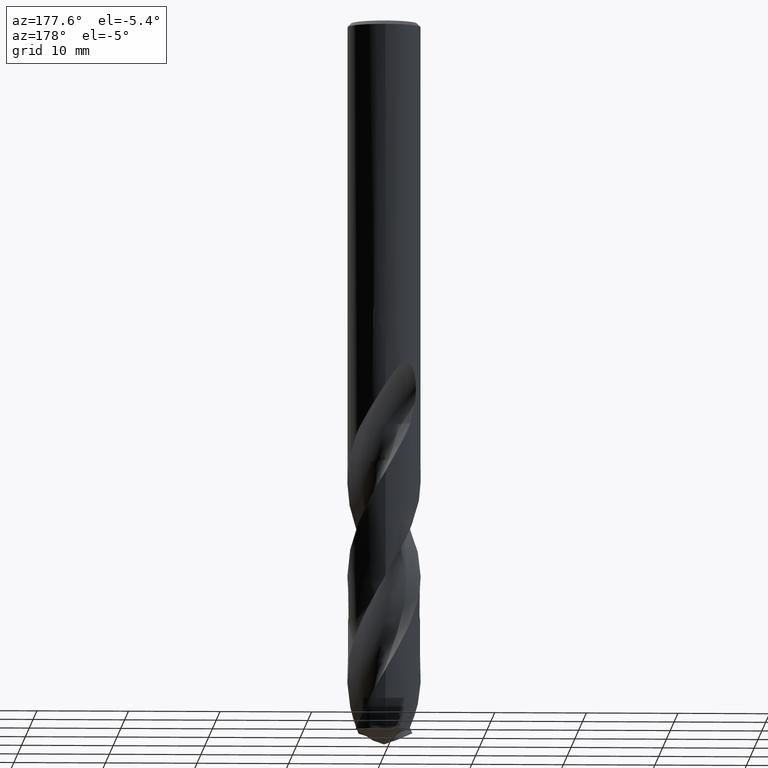
[diagram: clean part render]
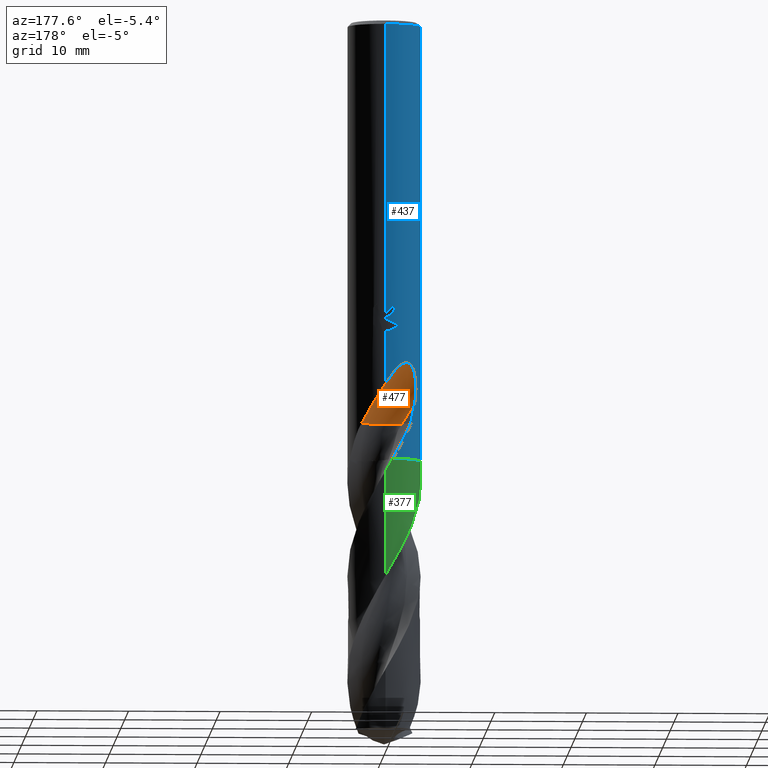
[diagram: same view with three faces highlighted in distinct colors, each labeled with its STEP entity id]
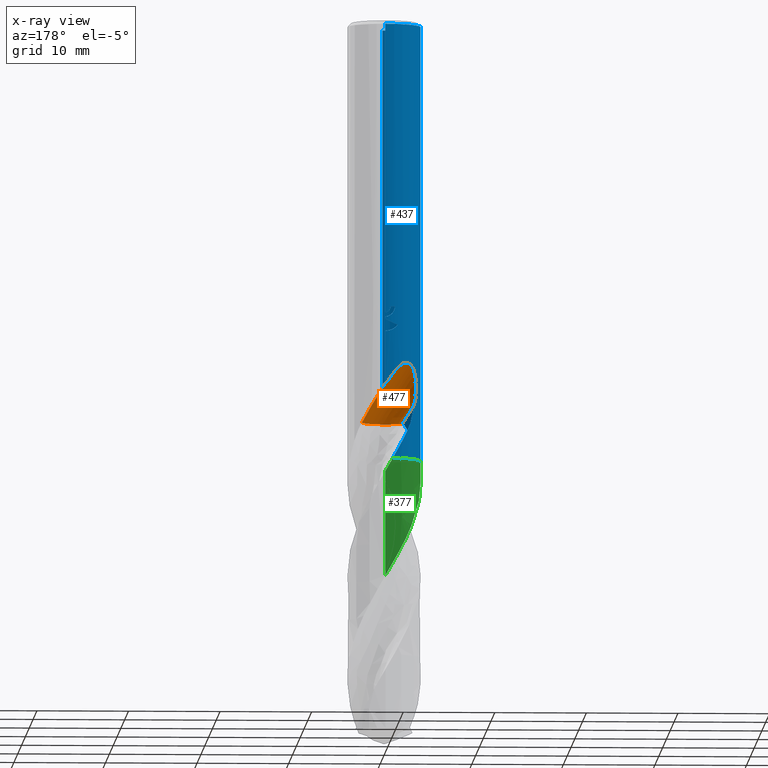
[diagram: x-ray of the same camera — body ghosted, the three highlighted faces saturated]
A machine part, auxiliary view with three faces highlighted in distinct colors.
The next image is the same camera in x-ray (body ghosted, the three faces saturated) — at least one of them is partly hidden behind the body in this view.
Their STEP definitions:

[orange] entity #477 — the highlighted face is a SurfaceOfRevolution surface.
#353=VERTEX_POINT('',#850);
#415=EDGE_CURVE('',#491,#523,#917,.T.);
#443=EDGE_CURVE('',#541,#461,#948,.T.);
#461=VERTEX_POINT('',#971);
#475=EDGE_CURVE('',#353,#523,#988,.T.);
#477=ADVANCED_FACE('',(#990),#991,.F.);
#491=VERTEX_POINT('',#1007);
#501=EDGE_CURVE('',#461,#353,#1017,.T.);
#523=VERTEX_POINT('',#1039);
#541=VERTEX_POINT('',#1058);
#641=EDGE_CURVE('',#541,#491,#1162,.T.);
#850=CARTESIAN_POINT('',(-1.88561808545044,1.98104858454956,-44.053));
#917=B_SPLINE_CURVE_WITH_KNOTS('',3,(#2986,#2987,#2988,#2989,#2990,#2991,#2992,#2993,#2994,#2995,#2996,#2997,#2998,#2999,#3000,#3001,#3002,#3003,#3004,#3005,#3006,#3007,#3008,#3009,#3010,#3011,#3012,#3013,#3014,#3015),.UNSPECIFIED.,.F.,.F.,(4,2,2,2,2,2,2,2,2,2,2,2,2,2,4),(0.0,1.95977624076947,3.02985967370601,3.99908599318628,5.12509377225497,6.47768674139893,7.65000215056745,8.18125540149243,8.56953673186918,8.93696441781958,9.40306833899562,10.0849972789289,11.0544394482072,11.6888355435218,12.3555427460094),.UNSPECIFIED.);
#948=CIRCLE('',#3332,2.66666667);
#971=CARTESIAN_POINT('',(-0.432589242824663,1.23530780301395,-44.053));
#988=CIRCLE('',#3715,17.3810396163249);
#990=FACE_OUTER_BOUND('',#3717,.T.);
#991=SURFACE_OF_REVOLUTION('',#3718,#3719);
#1007=CARTESIAN_POINT('',(-1.18618515617536E-012,4.0,-39.8010886237942));
#1017=CIRCLE('',#3901,2.66666667);
#1039=CARTESIAN_POINT('',(-3.25456865325919,2.32546401417495,-41.862679091506));
#1058=CARTESIAN_POINT('',(2.54885976013372,3.08274454393663,-44.053));
#1162=B_SPLINE_CURVE_WITH_KNOTS('',3,(#5756,#5757,#5758,#5759,#5760,#5761,#5762,#5763,#5764,#5765,#5766,#5767,#5768,#5769,#5770,#5771,#5772,#5773,#5774,#5775,#5776,#5777,#5778,#5779,#5780,#5781,#5782,#5783,#5784,#5785),.UNSPECIFIED.,.F.,.F.,(4,2,2,2,2,2,2,2,2,2,2,2,2,2,4),(0.0,1.95977624076947,3.02985967370601,3.99908599318628,5.12509377225497,6.47768674139893,7.65000215056745,8.18125540149243,8.56953673186918,8.93696441781958,9.40306833899562,10.0849972789289,11.0544394482072,11.6888355435218,12.3555427460094),.UNSPECIFIED.);
#2986=CARTESIAN_POINT('',(2.54885976013372,3.08274454393663,-44.053));
#2987=CARTESIAN_POINT('',(2.28500523660261,3.30090345005828,-43.4966417767988));
#2988=CARTESIAN_POINT('',(1.98163231588755,3.49483155995579,-42.977936421169));
#2989=CARTESIAN_POINT('',(1.45264038690851,3.73253113273964,-42.1114036522164));
#2990=CARTESIAN_POINT('',(1.26228426683794,3.80090830680974,-41.8065283302372));
#2991=CARTESIAN_POINT('',(0.893778878987872,3.90310035133813,-41.2163687713547));
#2992=CARTESIAN_POINT('',(0.717274980064568,3.93920455800775,-40.9338353559214));
#2993=CARTESIAN_POINT('',(0.33521839832061,3.99131183045806,-40.3249008687614));
#2994=CARTESIAN_POINT('',(0.126474396085212,4.00354517408276,-39.9937333591078));
#2995=CARTESIAN_POINT('',(-0.337092631504132,3.99379417253619,-39.2852567198373));
#2996=CARTESIAN_POINT('',(-0.611941054861174,3.96363461880695,-38.8821257542007));
#2997=CARTESIAN_POINT('',(-1.14195068256935,3.84183599193105,-38.2173906398542));
#2998=CARTESIAN_POINT('',(-1.43518376737336,3.74904084478621,-37.8930259656217));
#2999=CARTESIAN_POINT('',(-1.87898919238026,3.53454780533531,-37.5892910671245));
#3000=CARTESIAN_POINT('',(-2.02589175203402,3.45357173492742,-37.5142260075858));
#3001=CARTESIAN_POINT('',(-2.28329880223286,3.28684001880265,-37.4565626198684));
#3002=CARTESIAN_POINT('',(-2.38887588461981,3.21090914700583,-37.4554859280565));
#3003=CARTESIAN_POINT('',(-2.58551889986573,3.05450740730473,-37.5059535003711));
#3004=CARTESIAN_POINT('',(-2.67152074136922,2.97896849222708,-37.5532713078944));
#3005=CARTESIAN_POINT('',(-2.8465335331701,2.81343086569157,-37.7013232644774));
#3006=CARTESIAN_POINT('',(-2.92750237022738,2.72764511666503,-37.8106329899809));
#3007=CARTESIAN_POINT('',(-3.09335272716449,2.54032566393313,-38.1099569518954));
#3008=CARTESIAN_POINT('',(-3.17262589307935,2.43831682967142,-38.331966872197));
#3009=CARTESIAN_POINT('',(-3.32169614375785,2.23348439746403,-38.953125946192));
#3010=CARTESIAN_POINT('',(-3.37558848211908,2.14623565430961,-39.3955071231946));
#3011=CARTESIAN_POINT('',(-3.40226299691169,2.10356902640446,-40.21424616535));
#3012=CARTESIAN_POINT('',(-3.39599104218287,2.1139685132873,-40.5403087544243));
#3013=CARTESIAN_POINT('',(-3.35169145718829,2.18356392775092,-41.2020529092011));
#3014=CARTESIAN_POINT('',(-3.31213718412787,2.24489483106254,-41.5352437340999));
#3015=CARTESIAN_POINT('',(-3.25456865325918,2.32546401417496,-41.862679091506));
#3332=AXIS2_PLACEMENT_3D('',#7843,#7844,#7845);
#3715=AXIS2_PLACEMENT_3D('',#7924,#7925,#7926);
#3717=EDGE_LOOP('',(#7928,#7929,#7930,#7931,#7932));
#3718=(B_SPLINE_CURVE(3,(#7934,#7935,#7936,#7937,#7938,#7939,#7940,#7941,#7942),.UNSPECIFIED.,.F.,.F.)B_SPLINE_CURVE_WITH_KNOTS((4,1,3,1,4),(-2.85637185927229,-2.55358282198741,-2.25079378470252,-1.94800474741763,-1.64521571013274),.UNSPECIFIED.)RATIONAL_B_SPLINE_CURVE((1.09168120109991,1.03056040036664,0.969439599633363,1.03056040036664,1.09168120109991,1.03056040036664,0.969439599633363,1.03056040036664,1.09168120109991))BOUNDED_CURVE()REPRESENTATION_ITEM('')GEOMETRIC_REPRESENTATION_ITEM()CURVE());
#3719=AXIS1_PLACEMENT('',#7949,#7950);
#3901=AXIS2_PLACEMENT_3D('',#7970,#7971,#7972);
#5756=CARTESIAN_POINT('',(2.54885976013372,3.08274454393663,-44.053));
#5757=CARTESIAN_POINT('',(2.28500523660261,3.30090345005828,-43.4966417767988));
#5758=CARTESIAN_POINT('',(1.98163231588755,3.49483155995579,-42.977936421169));
#5759=CARTESIAN_POINT('',(1.45264038690851,3.73253113273964,-42.1114036522164));
#5760=CARTESIAN_POINT('',(1.26228426683794,3.80090830680974,-41.8065283302372));
#5761=CARTESIAN_POINT('',(0.893778878987872,3.90310035133813,-41.2163687713547));
#5762=CARTESIAN_POINT('',(0.717274980064568,3.93920455800775,-40.9338353559214));
#5763=CARTESIAN_POINT('',(0.33521839832061,3.99131183045806,-40.3249008687614));
#5764=CARTESIAN_POINT('',(0.126474396085212,4.00354517408276,-39.9937333591078));
#5765=CARTESIAN_POINT('',(-0.337092631504132,3.99379417253619,-39.2852567198373));
#5766=CARTESIAN_POINT('',(-0.611941054861174,3.96363461880695,-38.8821257542007));
#5767=CARTESIAN_POINT('',(-1.14195068256935,3.84183599193105,-38.2173906398542));
#5768=CARTESIAN_POINT('',(-1.43518376737336,3.74904084478621,-37.8930259656217));
#5769=CARTESIAN_POINT('',(-1.87898919238026,3.53454780533531,-37.5892910671245));
#5770=CARTESIAN_POINT('',(-2.02589175203402,3.45357173492742,-37.5142260075858));
#5771=CARTESIAN_POINT('',(-2.28329880223286,3.28684001880265,-37.4565626198684));
#5772=CARTESIAN_POINT('',(-2.38887588461981,3.21090914700583,-37.4554859280565));
#5773=CARTESIAN_POINT('',(-2.58551889986573,3.05450740730473,-37.5059535003711));
#5774=CARTESIAN_POINT('',(-2.67152074136922,2.97896849222708,-37.5532713078944));
#5775=CARTESIAN_POINT('',(-2.8465335331701,2.81343086569157,-37.7013232644774));
#5776=CARTESIAN_POINT('',(-2.92750237022738,2.72764511666503,-37.8106329899809));
#5777=CARTESIAN_POINT('',(-3.09335272716449,2.54032566393313,-38.1099569518954));
#5778=CARTESIAN_POINT('',(-3.17262589307935,2.43831682967142,-38.331966872197));
#5779=CARTESIAN_POINT('',(-3.32169614375785,2.23348439746403,-38.953125946192));
#5780=CARTESIAN_POINT('',(-3.37558848211908,2.14623565430961,-39.3955071231946));
#5781=CARTESIAN_POINT('',(-3.40226299691169,2.10356902640446,-40.21424616535));
#5782=CARTESIAN_POINT('',(-3.39599104218287,2.1139685132873,-40.5403087544243));
#5783=CARTESIAN_POINT('',(-3.35169145718829,2.18356392775092,-41.2020529092011));
#5784=CARTESIAN_POINT('',(-3.31213718412787,2.24489483106254,-41.5352437340999));
#5785=CARTESIAN_POINT('',(-3.25456865325918,2.32546401417496,-41.862679091506));
#7843=CARTESIAN_POINT('',(1.63299322933957E-005,3.86665034006771,-44.053));
#7844=DIRECTION('',(0.0,0.0,-1.0));
#7845=DIRECTION('',(0.707100657435429,0.707112904884633,0.0));
#7924=CARTESIAN_POINT('',(-1.35595008391942,19.33333335,-44.9004688024496));
#7925=DIRECTION('',(-0.847998304005088,0.0,-0.52999894000318));
#7926=DIRECTION('',(-0.0535598120485791,-0.994880693178143,0.0856956992777266));
#7928=ORIENTED_EDGE('',*,*,#641,.F.);
#7929=ORIENTED_EDGE('',*,*,#443,.T.);
#7930=ORIENTED_EDGE('',*,*,#501,.T.);
#7931=ORIENTED_EDGE('',*,*,#475,.T.);
#7932=ORIENTED_EDGE('',*,*,#415,.F.);
#7934=CARTESIAN_POINT('',(-1.88561808545044,1.98104858454956,-44.053));
#7935=CARTESIAN_POINT('',(-1.51627887929108,1.61170298119184,-44.053));
#7936=CARTESIAN_POINT('',(-0.555888248773313,1.08689778631539,-44.053));
#7937=CARTESIAN_POINT('',(0.532470674678381,1.20198692350343,-44.053));
#7938=CARTESIAN_POINT('',(1.01544885395796,1.40088313328606,-44.053));
#7939=CARTESIAN_POINT('',(1.49842703323753,1.59977934306869,-44.053));
#7940=CARTESIAN_POINT('',(2.35220999330017,2.28448753847919,-44.053));
#7941=CARTESIAN_POINT('',(2.66452195405557,3.3334069323912,-44.053));
#7942=CARTESIAN_POINT('',(2.66666064626455,3.85573159189116,-44.053));
#7949=CARTESIAN_POINT('',(-1.35595008391942,19.33333335,-44.9004688024496));
#7950=DIRECTION('',(0.847998304005088,-0.0,0.52999894000318));
#7970=CARTESIAN_POINT('',(1.63299322933957E-005,3.86665034006771,-44.053));
#7971=DIRECTION('',(0.0,0.0,-1.0));
#7972=DIRECTION('',(0.707100657435429,0.707112904884633,0.0));

[blue] entity #437 — the highlighted cylindrical surface (partial cylindrical patch) has radius 4 mm, axis along (-0, -0, 1).
#291=VERTEX_POINT('',#785);
#313=VERTEX_POINT('',#808);
#337=EDGE_CURVE('',#561,#519,#834,.T.);
#347=VERTEX_POINT('',#844);
#379=EDGE_CURVE('',#347,#313,#878,.T.);
#401=VERTEX_POINT('',#903);
#415=EDGE_CURVE('',#491,#523,#917,.T.);
#437=ADVANCED_FACE('',(#941),#942,.T.);
#441=VERTEX_POINT('',#946);
#447=EDGE_CURVE('',#527,#561,#953,.T.);
#455=VERTEX_POINT('',#964);
#463=EDGE_CURVE('',#553,#621,#973,.T.);
#471=EDGE_CURVE('',#621,#733,#983,.T.);
#491=VERTEX_POINT('',#1007);
#511=EDGE_CURVE('',#523,#691,#1027,.T.);
#517=EDGE_CURVE('',#401,#527,#1033,.T.);
#519=VERTEX_POINT('',#1035);
#523=VERTEX_POINT('',#1039);
#525=EDGE_CURVE('',#733,#291,#1041,.T.);
#527=VERTEX_POINT('',#1043);
#531=EDGE_CURVE('',#401,#609,#1047,.T.);
#553=VERTEX_POINT('',#1070);
#561=VERTEX_POINT('',#1078);
#579=EDGE_CURVE('',#519,#717,#1097,.T.);
#581=EDGE_CURVE('',#313,#491,#1099,.T.);
#609=VERTEX_POINT('',#1128);
#611=EDGE_CURVE('',#691,#609,#1130,.T.);
#621=VERTEX_POINT('',#1141);
#623=EDGE_CURVE('',#441,#347,#1143,.T.);
#649=EDGE_CURVE('',#455,#441,#1173,.T.);
#665=EDGE_CURVE('',#291,#455,#1190,.T.);
#691=VERTEX_POINT('',#1218);
#717=VERTEX_POINT('',#1249);
#719=EDGE_CURVE('',#717,#553,#1251,.T.);
#733=VERTEX_POINT('',#1267);
#785=CARTESIAN_POINT('',(-1.0350734039088,3.86375763325298,-31.3171221986971));
#808=CARTESIAN_POINT('',(-6.37761657961682E-016,4.0,-34.0310253601033));
#834=LINE('',#2195,#2196);
#844=CARTESIAN_POINT('',(-1.337052752443,3.76991908894403,-33.3720803908795));
#878=B_SPLINE_CURVE_WITH_KNOTS('',3,(#2368,#2369,#2370,#2371,#2372,#2373,#2374,#2375,#2376,#2377,#2378,#2379,#2380,#2381,#2382,#2383),.UNSPECIFIED.,.F.,.F.,(4,2,2,2,2,2,2,4),(5.59330412183837,6.21519943861119,6.52611580040833,6.83703216220547,7.14794852400261,7.45886488579976,7.76904377517712,8.07922266455448),.UNSPECIFIED.);
#903=CARTESIAN_POINT('',(-3.83967446936676,-1.12111550220888,-48.0));
#917=B_SPLINE_CURVE_WITH_KNOTS('',3,(#2986,#2987,#2988,#2989,#2990,#2991,#2992,#2993,#2994,#2995,#2996,#2997,#2998,#2999,#3000,#3001,#3002,#3003,#3004,#3005,#3006,#3007,#3008,#3009,#3010,#3011,#3012,#3013,#3014,#3015),.UNSPECIFIED.,.F.,.F.,(4,2,2,2,2,2,2,2,2,2,2,2,2,2,4),(0.0,1.95977624076947,3.02985967370601,3.99908599318628,5.12509377225497,6.47768674139893,7.65000215056745,8.18125540149243,8.56953673186918,8.93696441781958,9.40306833899562,10.0849972789289,11.0544394482072,11.6888355435218,12.3555427460094),.UNSPECIFIED.);
#941=FACE_OUTER_BOUND('',#3324,.T.);
#942=CYLINDRICAL_SURFACE('',#3325,4.0);
#946=CARTESIAN_POINT('',(-6.6846918771575E-016,4.0,-32.7128911336578));
#953=B_SPLINE_CURVE_WITH_KNOTS('',3,(#3338,#3339,#3340,#3341,#3342,#3343,#3344,#3345,#3346,#3347,#3348,#3349,#3350,#3351,#3352,#3353,#3354,#3355,#3356,#3357,#3358,#3359,#3360,#3361,#3362,#3363,#3364,#3365,#3366,#3367),.UNSPECIFIED.,.F.,.F.,(4,2,2,2,2,2,2,2,2,2,2,2,2,2,4),(0.0,1.9597762407695,3.02985967370596,3.99908599318602,5.1250937722548,6.47768674139874,7.65000215056726,8.18125540149219,8.56953673186899,8.93696441781943,9.40306833899536,10.0849972789282,11.0544394482058,11.6888355435201,12.3555427460073),.UNSPECIFIED.);
#964=CARTESIAN_POINT('',(1.76789376344218E-016,4.0,-32.5000801551881));
#973=B_SPLINE_CURVE_WITH_KNOTS('',3,(#3645,#3646,#3647,#3648,#3649,#3650,#3651,#3652,#3653,#3654,#3655,#3656,#3657,#3658,#3659,#3660,#3661,#3662,#3663,#3664,#3665,#3666,#3667,#3668,#3669,#3670,#3671),.UNSPECIFIED.,.F.,.F.,(4,2,3,2,2,2,2,2,2,2,2,2,4),(-0.543018145553855,-0.271509072776928,0.0,0.271509072776927,0.543018145553855,0.815414280910791,1.08781041626773,1.35870467547365,1.62959893467958,1.90093601549038,2.17227309630118,2.44361017711198,2.71494725792278),.UNSPECIFIED.);
#983=B_SPLINE_CURVE_WITH_KNOTS('',3,(#3682,#3683,#3684,#3685,#3686,#3687,#3688,#3689,#3690,#3691,#3692,#3693,#3694,#3695,#3696,#3697,#3698,#3699,#3700,#3701,#3702,#3703,#3704,#3705,#3706,#3707,#3708),.UNSPECIFIED.,.F.,.F.,(4,2,3,2,2,2,2,2,2,2,2,2,4),(-0.543018145553855,-0.271509072776928,0.0,0.271509072776927,0.543018145553855,0.815414280910791,1.08781041626773,1.35870467547365,1.62959893467958,1.90093601549038,2.17227309630118,2.44361017711198,2.71494725792278),.UNSPECIFIED.);
#1007=CARTESIAN_POINT('',(-1.18618515617536E-012,4.0,-39.8010886237942));
#1027=B_SPLINE_CURVE_WITH_KNOTS('',3,(#3979,#3980,#3981,#3982),.UNSPECIFIED.,.F.,.F.,(4,4),(0.0,2.29887959846366),.UNSPECIFIED.);
#1033=B_SPLINE_CURVE_WITH_KNOTS('',3,(#4036,#4037,#4038,#4039,#4040,#4041,#4042,#4043,#4044,#4045),.UNSPECIFIED.,.F.,.F.,(4,2,2,2,4),(0.0,2.93691287910387,4.385622590007,6.48194855852538,10.8463158632258),.UNSPECIFIED.);
#1035=CARTESIAN_POINT('',(4.89842541528951E-016,-4.0,-0.399999999999999));
#1039=CARTESIAN_POINT('',(-3.25456865325919,2.32546401417495,-41.862679091506));
#1041=CIRCLE('',#4054,4.0);
#1043=CARTESIAN_POINT('',(-2.54885976013372,-3.08274454393663,-44.053));
#1047=CIRCLE('',#4062,4.0);
#1070=CARTESIAN_POINT('',(0.0,4.0,-32.0232688117743));
#1078=CARTESIAN_POINT('',(1.18285448710148E-012,-4.0,-39.8010886237942));
#1097=CIRCLE('',#4653,4.0);
#1099=LINE('',#4656,#4657);
#1128=CARTESIAN_POINT('',(-0.793918548138542,3.92042004623504,-48.0));
#1130=B_SPLINE_CURVE_WITH_KNOTS('',3,(#5308,#5309,#5310,#5311,#5312,#5313,#5314,#5315,#5316,#5317),.UNSPECIFIED.,.F.,.F.,(4,2,2,2,4),(0.0,1.08499727507736,2.08081364651201,3.14812656377739,4.20703552525494),.UNSPECIFIED.);
#1141=CARTESIAN_POINT('',(-0.486378944383045,3.97031932248035,-31.6432837483006));
#1143=ELLIPSE('',#5640,4.45971372817144,4.0);
#1173=LINE('',#5797,#5798);
#1190=B_SPLINE_CURVE_WITH_KNOTS('',3,(#5927,#5928,#5929,#5930,#5931,#5932,#5933,#5934,#5935,#5936,#5937,#5938,#5939,#5940),.UNSPECIFIED.,.F.,.F.,(4,2,2,2,2,2,4),(3.1414972576051,3.58983629155794,4.03817532551078,4.48651435946362,4.93338740522822,5.38026045099282,5.83106711565938),.UNSPECIFIED.);
#1218=CARTESIAN_POINT('',(-2.78030937116489,2.87573987012259,-44.053));
#1249=CARTESIAN_POINT('',(0.0,4.0,-0.399999999999999));
#1251=LINE('',#7101,#7102);
#1267=CARTESIAN_POINT('',(-0.562333990228013,3.9602753039952,-31.3171221986971));
#2195=CARTESIAN_POINT('',(4.89842541528951E-016,-4.0,-44.0));
#2196=VECTOR('',#7739,1.0);
#2368=CARTESIAN_POINT('',(-1.53169074080201,3.69512157777541,-33.0291469804961));
#2369=CARTESIAN_POINT('',(-1.44828662161398,3.72969396308271,-33.2292685117474));
#2370=CARTESIAN_POINT('',(-1.3235119204923,3.77766697431007,-33.4106519059977));
#2371=CARTESIAN_POINT('',(-1.10876972720289,3.84398770228913,-33.6255223555534));
#2372=CARTESIAN_POINT('',(-1.02784628500841,3.86675406900514,-33.6929304922165));
#2373=CARTESIAN_POINT('',(-0.851215741256186,3.9094356085587,-33.8121513963803));
#2374=CARTESIAN_POINT('',(-0.755506440008018,3.92931563110609,-33.8639734861066));
#2375=CARTESIAN_POINT('',(-0.55516132520436,3.96258844897707,-33.9475385932463));
#2376=CARTESIAN_POINT('',(-0.450345578096092,3.97598591776774,-33.9793474763458));
#2377=CARTESIAN_POINT('',(-0.238765831475676,3.99427916347003,-34.0212208804589));
#2378=CARTESIAN_POINT('',(-0.131998351317953,3.99916459194608,-34.0312723335086));
#2379=CARTESIAN_POINT('',(0.0750281946656646,4.00063255933723,-34.0312723335086));
#2380=CARTESIAN_POINT('',(0.181611397509719,3.99727906083033,-34.0212676362976));
#2381=CARTESIAN_POINT('',(0.392937729655654,3.98206259750675,-33.9795209106323));
#2382=CARTESIAN_POINT('',(0.497684032548134,3.97021008398904,-33.9477911393989));
#2383=CARTESIAN_POINT('',(0.597825841435798,3.9550732310934,-33.9060826866649));
#2986=CARTESIAN_POINT('',(2.54885976013372,3.08274454393663,-44.053));
#2987=CARTESIAN_POINT('',(2.28500523660261,3.30090345005828,-43.4966417767988));
#2988=CARTESIAN_POINT('',(1.98163231588755,3.49483155995579,-42.977936421169));
#2989=CARTESIAN_POINT('',(1.45264038690851,3.73253113273964,-42.1114036522164));
#2990=CARTESIAN_POINT('',(1.26228426683794,3.80090830680974,-41.8065283302372));
#2991=CARTESIAN_POINT('',(0.893778878987872,3.90310035133813,-41.2163687713547));
#2992=CARTESIAN_POINT('',(0.717274980064568,3.93920455800775,-40.9338353559214));
#2993=CARTESIAN_POINT('',(0.33521839832061,3.99131183045806,-40.3249008687614));
#2994=CARTESIAN_POINT('',(0.126474396085212,4.00354517408276,-39.9937333591078));
#2995=CARTESIAN_POINT('',(-0.337092631504132,3.99379417253619,-39.2852567198373));
#2996=CARTESIAN_POINT('',(-0.611941054861174,3.96363461880695,-38.8821257542007));
#2997=CARTESIAN_POINT('',(-1.14195068256935,3.84183599193105,-38.2173906398542));
#2998=CARTESIAN_POINT('',(-1.43518376737336,3.74904084478621,-37.8930259656217));
#2999=CARTESIAN_POINT('',(-1.87898919238026,3.53454780533531,-37.5892910671245));
#3000=CARTESIAN_POINT('',(-2.02589175203402,3.45357173492742,-37.5142260075858));
#3001=CARTESIAN_POINT('',(-2.28329880223286,3.28684001880265,-37.4565626198684));
#3002=CARTESIAN_POINT('',(-2.38887588461981,3.21090914700583,-37.4554859280565));
#3003=CARTESIAN_POINT('',(-2.58551889986573,3.05450740730473,-37.5059535003711));
#3004=CARTESIAN_POINT('',(-2.67152074136922,2.97896849222708,-37.5532713078944));
#3005=CARTESIAN_POINT('',(-2.8465335331701,2.81343086569157,-37.7013232644774));
#3006=CARTESIAN_POINT('',(-2.92750237022738,2.72764511666503,-37.8106329899809));
#3007=CARTESIAN_POINT('',(-3.09335272716449,2.54032566393313,-38.1099569518954));
#3008=CARTESIAN_POINT('',(-3.17262589307935,2.43831682967142,-38.331966872197));
#3009=CARTESIAN_POINT('',(-3.32169614375785,2.23348439746403,-38.953125946192));
#3010=CARTESIAN_POINT('',(-3.37558848211908,2.14623565430961,-39.3955071231946));
#3011=CARTESIAN_POINT('',(-3.40226299691169,2.10356902640446,-40.21424616535));
#3012=CARTESIAN_POINT('',(-3.39599104218287,2.1139685132873,-40.5403087544243));
#3013=CARTESIAN_POINT('',(-3.35169145718829,2.18356392775092,-41.2020529092011));
#3014=CARTESIAN_POINT('',(-3.31213718412787,2.24489483106254,-41.5352437340999));
#3015=CARTESIAN_POINT('',(-3.25456865325918,2.32546401417496,-41.862679091506));
#3324=EDGE_LOOP('',(#7823,#7824,#7825,#7826,#7827,#7828,#7829,#7830,#7831,#7832,#7833,#7834,#7835,#7836,#7837,#7838,#7839));
#3325=AXIS2_PLACEMENT_3D('',#7840,#7841,#7842);
#3338=CARTESIAN_POINT('',(-2.54885976013373,-3.08274454393663,-44.053));
#3339=CARTESIAN_POINT('',(-2.28500523660261,-3.30090345005828,-43.4966417767988));
#3340=CARTESIAN_POINT('',(-1.98163231588754,-3.49483155995579,-42.977936421169));
#3341=CARTESIAN_POINT('',(-1.45264038690853,-3.73253113273964,-42.1114036522165));
#3342=CARTESIAN_POINT('',(-1.26228426683797,-3.80090830680973,-41.8065283302373));
#3343=CARTESIAN_POINT('',(-0.893778878987868,-3.90310035133814,-41.2163687713546));
#3344=CARTESIAN_POINT('',(-0.717274980064561,-3.93920455800776,-40.9338353559214));
#3345=CARTESIAN_POINT('',(-0.335218398320563,-3.99131183045807,-40.3249008687613));
#3346=CARTESIAN_POINT('',(-0.12647439608519,-4.00354517408276,-39.9937333591077));
#3347=CARTESIAN_POINT('',(0.337092631504076,-3.99379417253619,-39.2852567198373));
#3348=CARTESIAN_POINT('',(0.611941054861158,-3.96363461880696,-38.8821257542007));
#3349=CARTESIAN_POINT('',(1.14195068256936,-3.84183599193105,-38.2173906398542));
#3350=CARTESIAN_POINT('',(1.43518376737336,-3.74904084478621,-37.8930259656217));
#3351=CARTESIAN_POINT('',(1.87898919238024,-3.53454780533532,-37.5892910671245));
#3352=CARTESIAN_POINT('',(2.02589175203401,-3.45357173492743,-37.5142260075858));
#3353=CARTESIAN_POINT('',(2.28329880223289,-3.28684001880263,-37.4565626198684));
#3354=CARTESIAN_POINT('',(2.38887588461982,-3.21090914700582,-37.4554859280565));
#3355=CARTESIAN_POINT('',(2.58551889986571,-3.05450740730474,-37.5059535003711));
#3356=CARTESIAN_POINT('',(2.67152074136919,-2.9789684922271,-37.5532713078944));
#3357=CARTESIAN_POINT('',(2.8465335331701,-2.81343086569157,-37.7013232644774));
#3358=CARTESIAN_POINT('',(2.92750237022739,-2.72764511666502,-37.8106329899809));
#3359=CARTESIAN_POINT('',(3.09335272716445,-2.54032566393318,-38.1099569518953));
#3360=CARTESIAN_POINT('',(3.17262589307932,-2.43831682967145,-38.3319668721969));
#3361=CARTESIAN_POINT('',(3.32169614375787,-2.233484397464,-38.953125946192));
#3362=CARTESIAN_POINT('',(3.37558848211908,-2.14623565430961,-39.3955071231947));
#3363=CARTESIAN_POINT('',(3.40226299691169,-2.10356902640446,-40.21424616535));
#3364=CARTESIAN_POINT('',(3.39599104218287,-2.1139685132873,-40.5403087544243));
#3365=CARTESIAN_POINT('',(3.35169145718829,-2.18356392775092,-41.2020529092011));
#3366=CARTESIAN_POINT('',(3.31213718412786,-2.24489483106254,-41.5352437340999));
#3367=CARTESIAN_POINT('',(3.25456865325918,-2.32546401417496,-41.862679091506));
#3645=CARTESIAN_POINT('',(0.665279195004375,3.9442874632428,-30.8137529884524));
#3646=CARTESIAN_POINT('',(0.72877088492158,3.9335783806135,-30.8773526603125));
#3647=CARTESIAN_POINT('',(0.783944488018489,3.92260552826083,-30.957920893425));
#3648=CARTESIAN_POINT('',(0.857267073993339,3.90723639918054,-31.134802544027));
#3649=CARTESIAN_POINT('',(0.875400981188567,3.90303383563787,-31.2311389883278));
#3650=CARTESIAN_POINT('',(0.875400981188567,3.90303383563787,-31.3216420125868));
#3651=CARTESIAN_POINT('',(0.875400981188567,3.90303383563787,-31.4121450368458));
#3652=CARTESIAN_POINT('',(0.857267073993339,3.90723639918054,-31.5084814811466));
#3653=CARTESIAN_POINT('',(0.783944488018488,3.92260552826083,-31.6853631317485));
#3654=CARTESIAN_POINT('',(0.728770884921581,3.9335783806135,-31.765931364861));
#3655=CARTESIAN_POINT('',(0.601580067811904,3.95503153411898,-31.8933384986505));
#3656=CARTESIAN_POINT('',(0.520902117238449,3.96693827151805,-31.9487071231089));
#3657=CARTESIAN_POINT('',(0.343752086871948,3.98619778335453,-32.0223037477669));
#3658=CARTESIAN_POINT('',(0.247255556938652,3.99338316413851,-32.0405166027747));
#3659=CARTESIAN_POINT('',(0.0662974670001867,4.00046977119903,-32.0405166027747));
#3660=CARTESIAN_POINT('',(-0.0299674229107091,4.00086780861984,-32.0224830783564));
#3661=CARTESIAN_POINT('',(-0.206991592502204,3.99562207288533,-31.9491870835923));
#3662=CARTESIAN_POINT('',(-0.287758268875903,3.99014940483369,-31.8939303320089));
#3663=CARTESIAN_POINT('',(-0.415384305359873,3.97889009382894,-31.7664425414649));
#3664=CARTESIAN_POINT('',(-0.470753835570468,3.9723749730993,-31.6856442592887));
#3665=CARTESIAN_POINT('',(-0.544239101864661,3.96297563900076,-31.5084730190186));
#3666=CARTESIAN_POINT('',(-0.562348199187247,3.96027328638705,-31.4120877061904));
#3667=CARTESIAN_POINT('',(-0.562348199187247,3.96027328638705,-31.2311963189832));
#3668=CARTESIAN_POINT('',(-0.544239101864661,3.96297563900076,-31.134811006155));
#3669=CARTESIAN_POINT('',(-0.470753835570468,3.9723749730993,-30.9576397658849));
#3670=CARTESIAN_POINT('',(-0.415384305359873,3.97889009382894,-30.8768414837086));
#3671=CARTESIAN_POINT('',(-0.351519173230209,3.98452434687649,-30.8130455309993));
#3682=CARTESIAN_POINT('',(0.665279195004375,3.9442874632428,-30.8137529884524));
#3683=CARTESIAN_POINT('',(0.72877088492158,3.9335783806135,-30.8773526603125));
#3684=CARTESIAN_POINT('',(0.783944488018489,3.92260552826083,-30.957920893425));
#3685=CARTESIAN_POINT('',(0.857267073993339,3.90723639918054,-31.134802544027));
#3686=CARTESIAN_POINT('',(0.875400981188567,3.90303383563787,-31.2311389883278));
#3687=CARTESIAN_POINT('',(0.875400981188567,3.90303383563787,-31.3216420125868));
#3688=CARTESIAN_POINT('',(0.875400981188567,3.90303383563787,-31.4121450368458));
#3689=CARTESIAN_POINT('',(0.857267073993339,3.90723639918054,-31.5084814811466));
#3690=CARTESIAN_POINT('',(0.783944488018488,3.92260552826083,-31.6853631317485));
#3691=CARTESIAN_POINT('',(0.728770884921581,3.9335783806135,-31.765931364861));
#3692=CARTESIAN_POINT('',(0.601580067811904,3.95503153411898,-31.8933384986505));
#3693=CARTESIAN_POINT('',(0.520902117238449,3.96693827151805,-31.9487071231089));
#3694=CARTESIAN_POINT('',(0.343752086871948,3.98619778335453,-32.0223037477669));
#3695=CARTESIAN_POINT('',(0.247255556938652,3.99338316413851,-32.0405166027747));
#3696=CARTESIAN_POINT('',(0.0662974670001867,4.00046977119903,-32.0405166027747));
#3697=CARTESIAN_POINT('',(-0.0299674229107091,4.00086780861984,-32.0224830783564));
#3698=CARTESIAN_POINT('',(-0.206991592502204,3.99562207288533,-31.9491870835923));
#3699=CARTESIAN_POINT('',(-0.287758268875903,3.99014940483369,-31.8939303320089));
#3700=CARTESIAN_POINT('',(-0.415384305359873,3.97889009382894,-31.7664425414649));
#3701=CARTESIAN_POINT('',(-0.470753835570468,3.9723749730993,-31.6856442592887));
#3702=CARTESIAN_POINT('',(-0.544239101864661,3.96297563900076,-31.5084730190186));
#3703=CARTESIAN_POINT('',(-0.562348199187247,3.96027328638705,-31.4120877061904));
#3704=CARTESIAN_POINT('',(-0.562348199187247,3.96027328638705,-31.2311963189832));
#3705=CARTESIAN_POINT('',(-0.544239101864661,3.96297563900076,-31.134811006155));
#3706=CARTESIAN_POINT('',(-0.470753835570468,3.9723749730993,-30.9576397658849));
#3707=CARTESIAN_POINT('',(-0.415384305359873,3.97889009382894,-30.8768414837086));
#3708=CARTESIAN_POINT('',(-0.351519173230209,3.98452434687649,-30.8130455309993));
#3979=CARTESIAN_POINT('',(-3.2545686533118,2.32546401410131,-41.862679091535));
#3980=CARTESIAN_POINT('',(-3.12561195037748,2.50594345410102,-42.5961657022424));
#3981=CARTESIAN_POINT('',(-2.9701846549125,2.69216553635172,-43.3340172614407));
#3982=CARTESIAN_POINT('',(-2.78030937116489,2.87573987012259,-44.053));
#4036=CARTESIAN_POINT('',(-3.83967446936677,-1.12111550220888,-48.0));
#4037=CARTESIAN_POINT('',(-3.70247878672803,-1.59099283322198,-47.1521929592155));
#4038=CARTESIAN_POINT('',(-3.50594393195459,-1.94350800472794,-46.4946777898071));
#4039=CARTESIAN_POINT('',(-3.29392167496139,-2.27306767074927,-45.7892184408958));
#4040=CARTESIAN_POINT('',(-3.24400883722218,-2.34304445925627,-45.6147965799926));
#4041=CARTESIAN_POINT('',(-3.07124213190054,-2.5681970456782,-45.0841904748347));
#4042=CARTESIAN_POINT('',(-2.99783008715717,-2.64940407295005,-44.903518435817));
#4043=CARTESIAN_POINT('',(-2.83186931186606,-2.82983046236725,-44.5244662919089));
#4044=CARTESIAN_POINT('',(-2.70156153780939,-2.95648840727946,-44.2842959362836));
#4045=CARTESIAN_POINT('',(-2.54885976013372,-3.08274454393663,-44.053));
#4054=AXIS2_PLACEMENT_3D('',#7975,#7976,#7977);
#4062=AXIS2_PLACEMENT_3D('',#7981,#7982,#7983);
#4653=AXIS2_PLACEMENT_3D('',#8010,#8011,#8012);
#4656=CARTESIAN_POINT('',(-4.89842541528951E-016,4.0,-44.0));
#4657=VECTOR('',#8013,1.0);
#5308=CARTESIAN_POINT('',(-2.78030937116489,2.87573987012259,-44.053));
#5309=CARTESIAN_POINT('',(-2.65679097853788,2.99515934477676,-44.3712519701834));
#5310=CARTESIAN_POINT('',(-2.52403134466074,3.10886386546167,-44.6838478335585));
#5311=CARTESIAN_POINT('',(-2.23196085326553,3.32392556579085,-45.2998001276823));
#5312=CARTESIAN_POINT('',(-2.0849397643645,3.41873333963473,-45.5912279924317));
#5313=CARTESIAN_POINT('',(-1.74639804066145,3.60415990705254,-46.2582864053071));
#5314=CARTESIAN_POINT('',(-1.56333247061888,3.68740490240157,-46.6081532718449));
#5315=CARTESIAN_POINT('',(-1.18464339391938,3.825825507189,-47.3067626670227));
#5316=CARTESIAN_POINT('',(-0.991065521749609,3.8804961000218,-47.6525083028432));
#5317=CARTESIAN_POINT('',(-0.793918548138525,3.92042004623505,-48.0));
#5640=AXIS2_PLACEMENT_3D('',#8027,#8028,#8029);
#5797=CARTESIAN_POINT('',(-4.89842541528951E-016,4.0,-44.0));
#5798=VECTOR('',#8072,1.0);
#5927=CARTESIAN_POINT('',(-0.944485730255266,3.88689422358574,-30.8721937017831));
#5928=CARTESIAN_POINT('',(-1.00507715869677,3.87217097566101,-31.0179579829107));
#5929=CARTESIAN_POINT('',(-1.03510901790186,3.86374809233964,-31.1768555160818));
#5930=CARTESIAN_POINT('',(-1.03510901790186,3.86374809233964,-31.4757482053837));
#5931=CARTESIAN_POINT('',(-1.00507715869677,3.87217097566101,-31.6346457385549));
#5932=CARTESIAN_POINT('',(-0.883894301813808,3.90161747151052,-31.9261743008101));
#5933=CARTESIAN_POINT('',(-0.792777739201659,3.92209884636082,-32.0588741566082));
#5934=CARTESIAN_POINT('',(-0.583167230532526,3.95868636589293,-32.2680863721804));
#5935=CARTESIAN_POINT('',(-0.45058383496046,3.97722069531043,-32.3588815936827));
#5936=CARTESIAN_POINT('',(-0.159473350781571,3.99948477939054,-32.4795403751275));
#5937=CARTESIAN_POINT('',(-0.000897992260163127,4.00277248724098,-32.5093686300866));
#5938=CARTESIAN_POINT('',(0.298123804149289,3.99170426461769,-32.5093686300866));
#5939=CARTESIAN_POINT('',(0.457309150143188,3.97650554840773,-32.479068217488));
#5940=CARTESIAN_POINT('',(0.603028766367665,3.9542832861257,-32.4183446035468));
#7101=CARTESIAN_POINT('',(-4.89842541528951E-016,4.0,-44.0));
#7102=VECTOR('',#8159,1.0);
#7739=DIRECTION('',(-0.0,-0.0,1.0));
#7823=ORIENTED_EDGE('',*,*,#719,.T.);
#7824=ORIENTED_EDGE('',*,*,#463,.T.);
#7825=ORIENTED_EDGE('',*,*,#471,.T.);
#7826=ORIENTED_EDGE('',*,*,#525,.T.);
#7827=ORIENTED_EDGE('',*,*,#665,.T.);
#7828=ORIENTED_EDGE('',*,*,#649,.T.);
#7829=ORIENTED_EDGE('',*,*,#623,.T.);
#7830=ORIENTED_EDGE('',*,*,#379,.T.);
#7831=ORIENTED_EDGE('',*,*,#581,.T.);
#7832=ORIENTED_EDGE('',*,*,#415,.T.);
#7833=ORIENTED_EDGE('',*,*,#511,.T.);
#7834=ORIENTED_EDGE('',*,*,#611,.T.);
#7835=ORIENTED_EDGE('',*,*,#531,.F.);
#7836=ORIENTED_EDGE('',*,*,#517,.T.);
#7837=ORIENTED_EDGE('',*,*,#447,.T.);
#7838=ORIENTED_EDGE('',*,*,#337,.T.);
#7839=ORIENTED_EDGE('',*,*,#579,.T.);
#7840=CARTESIAN_POINT('',(0.0,0.0,-44.0));
#7841=DIRECTION('',(-0.0,-0.0,1.0));
#7842=DIRECTION('',(0.0,1.0,0.0));
#7975=CARTESIAN_POINT('',(0.0,0.0,-31.3171221986971));
#7976=DIRECTION('',(0.0,-0.0,1.0));
#7977=DIRECTION('',(0.0,1.0,0.0));
#7981=CARTESIAN_POINT('',(0.0,0.0,-48.0));
#7982=DIRECTION('',(0.0,0.0,-1.0));
#7983=DIRECTION('',(0.0,1.0,0.0));
#8010=CARTESIAN_POINT('',(0.0,0.0,-0.399999999999999));
#8011=DIRECTION('',(0.0,0.0,-1.0));
#8012=DIRECTION('',(0.0,1.0,0.0));
#8013=DIRECTION('',(0.0,0.0,-1.0));
#8027=CARTESIAN_POINT('',(0.0,0.0,-32.7128911336578));
#8028=DIRECTION('',(-0.442195774284071,0.0,0.896918556617774));
#8029=DIRECTION('',(0.896918556617774,-0.0,0.442195774284071));
#8072=DIRECTION('',(0.0,0.0,-1.0));
#8159=DIRECTION('',(0.0,0.0,-1.0));

[green] entity #377 — the highlighted conical surface has half-angle 0 deg.
#293=EDGE_CURVE('',#655,#363,#787,.T.);
#335=VERTEX_POINT('',#832);
#363=VERTEX_POINT('',#860);
#377=ADVANCED_FACE('',(#875),#876,.T.);
#399=EDGE_CURVE('',#335,#585,#901,.T.);
#433=VERTEX_POINT('',#937);
#545=EDGE_CURVE('',#433,#655,#1062,.T.);
#551=VERTEX_POINT('',#1068);
#555=EDGE_CURVE('',#363,#335,#1072,.T.);
#567=EDGE_CURVE('',#585,#551,#1084,.T.);
#585=VERTEX_POINT('',#1103);
#655=VERTEX_POINT('',#1179);
#705=EDGE_CURVE('',#551,#433,#1234,.T.);
#787=CIRCLE('',#1564,3.9999);
#832=CARTESIAN_POINT('',(-0.791054773656978,3.92089689872888,-48.005));
#860=CARTESIAN_POINT('',(-0.793891596292528,3.92032347432404,-48.0));
#875=FACE_OUTER_BOUND('',#2364,.T.);
#876=CONICAL_SURFACE('',#2365,3.99995,3.38476837934508E-006);
#901=B_SPLINE_CURVE_WITH_KNOTS('',3,(#2912,#2913,#2914,#2915,#2916,#2917,#2918,#2919,#2920,#2921,#2922,#2923,#2924,#2925,#2926,#2927,#2928,#2929,#2930,#2931,#2932,#2933,#2934,#2935,#2936,#2937,#2938,#2939,#2940,#2941,#2942,#2943,#2944,#2945,#2946,#2947,#2948,#2949,#2950,#2951,#2952,#2953,#2954,#2955,#2956,#2957,#2958,#2959,#2960,#2961),.UNSPECIFIED.,.F.,.F.,(4,2,2,2,2,2,2,2,2,2,2,2,2,2,2,2,2,2,2,2,2,2,2,2,4),(0.0,1.02799668072743,2.07735387750511,3.63013426701906,5.17800600634503,5.94599776401819,7.48811495478493,9.03166706725674,10.5844226292078,10.6321024625737,12.0985094851628,13.6544079895645,15.1994408432982,15.9700367694683,17.5101261621021,19.0567035443242,20.6081106442215,20.7990912396723,22.3324829514634,23.8079970118476,25.0952914905237,26.2243221054279,28.1968960374362,28.3820861641038,34.2062165402918),.UNSPECIFIED.);
#937=CARTESIAN_POINT('',(-3.84039807944585,-1.11827669217084,-48.005));
#1062=B_SPLINE_CURVE_WITH_KNOTS('',3,(#4110,#4111,#4112,#4113),.UNSPECIFIED.,.F.,.F.,(4,4),(0.0,0.0119470327330659),.UNSPECIFIED.);
#1068=CARTESIAN_POINT('',(-3.17754887314455E-014,3.9999434480813,-60.8363528659135));
#1072=B_SPLINE_CURVE_WITH_KNOTS('',3,(#4126,#4127,#4128,#4129),.UNSPECIFIED.,.F.,.F.,(4,4),(0.0,0.00988805526226202),.UNSPECIFIED.);
#1084=LINE('',#4143,#4144);
#1103=CARTESIAN_POINT('',(1.30027009858749E-012,3.99990468181259,-49.3832002838924));
#1179=CARTESIAN_POINT('',(-3.83959003598638,-1.1210478872707,-48.0));
#1234=B_SPLINE_CURVE_WITH_KNOTS('',3,(#7014,#7015,#7016,#7017,#7018,#7019,#7020,#7021,#7022,#7023,#7024,#7025,#7026,#7027,#7028,#7029,#7030,#7031,#7032,#7033,#7034,#7035,#7036,#7037,#7038,#7039,#7040,#7041,#7042,#7043,#7044,#7045,#7046,#7047,#7048,#7049,#7050,#7051,#7052,#7053,#7054,#7055,#7056,#7057,#7058,#7059,#7060,#7061,#7062,#7063,#7064,#7065,#7066,#7067,#7068,#7069,#7070,#7071,#7072,#7073,#7074,#7075,#7076,#7077,#7078,#7079,#7080,#7081),.UNSPECIFIED.,.F.,.F.,(4,2,2,2,2,2,2,2,2,2,2,2,2,2,2,2,2,2,2,2,2,2,2,2,2,2,2,2,2,2,2,2,2,4),(0.0,0.944607777951152,3.20738165784091,3.64605016216994,5.04109177066334,6.93254200106291,8.19569085280336,8.77122407498154,9.97841143391573,10.6092595884527,11.2375063172465,12.8818820820643,14.1404376517296,15.6474019999948,16.4210270530417,17.6649263078373,18.2732221294344,18.862197969928,20.0619139881193,20.6721260881207,21.4457888174847,22.515787372869,23.047010431332,24.006520346266,25.19762600031,25.7582955325948,26.8049941696069,27.7248702969497,28.3452986972415,29.0702166414249,30.3435447122945,32.2513553595285,32.7291510940219,34.1591776465675),.UNSPECIFIED.);
#1564=AXIS2_PLACEMENT_3D('',#7710,#7711,#7712);
#2364=EDGE_LOOP('',(#7759,#7760,#7761,#7762,#7763,#7764));
#2365=AXIS2_PLACEMENT_3D('',#7765,#7766,#7767);
#2912=CARTESIAN_POINT('',(-0.791838784257172,3.92073863547652,-48.0036182177148));
#2913=CARTESIAN_POINT('',(-0.623572954509753,3.95472290159962,-48.3001841739063));
#2914=CARTESIAN_POINT('',(-0.45347379760611,3.97780335772909,-48.5970459985183));
#2915=CARTESIAN_POINT('',(-0.108190376495856,4.00226200502776,-49.1965065546733));
#2916=CARTESIAN_POINT('',(0.0669438566469325,4.00317526336883,-49.4986144398605));
#2917=CARTESIAN_POINT('',(0.500304799382371,3.97694296300389,-50.2490689059162));
#2918=CARTESIAN_POINT('',(0.756639476187242,3.93621046468539,-50.6957967936098));
#2919=CARTESIAN_POINT('',(1.25679439903018,3.8060905605391,-51.5903377100846));
#2920=CARTESIAN_POINT('',(1.49972547531259,3.71709823424073,-52.03585489961));
#2921=CARTESIAN_POINT('',(1.8479686907216,3.54975430318761,-52.7037723757406));
#2922=CARTESIAN_POINT('',(1.96068160427707,3.4887617789161,-52.9250443367455));
#2923=CARTESIAN_POINT('',(2.29026091750923,3.28940301301082,-53.5914805864205));
#2924=CARTESIAN_POINT('',(2.49699202947583,3.1353756438742,-54.0356106517793));
#2925=CARTESIAN_POINT('',(2.87825773887598,2.78950342194493,-54.9256725992857));
#2926=CARTESIAN_POINT('',(3.0517704616376,2.59852349962407,-55.3698768717441));
#2927=CARTESIAN_POINT('',(3.36051953863626,2.18480023583649,-56.2632035053534));
#2928=CARTESIAN_POINT('',(3.49489687900719,1.96271308721753,-56.7099054999625));
#2929=CARTESIAN_POINT('',(3.61032397461312,1.7219385673666,-57.1715313415513));
#2930=CARTESIAN_POINT('',(3.61374109732805,1.71475574597713,-57.1852839122685));
#2931=CARTESIAN_POINT('',(3.72156524469699,1.4863549761928,-57.6220044794636));
#2932=CARTESIAN_POINT('',(3.80547096364755,1.25605748852747,-58.0446831869871));
#2933=CARTESIAN_POINT('',(3.93396057781863,0.768629499693572,-58.9165873600731));
#2934=CARTESIAN_POINT('',(3.9755205634699,0.511902729983106,-59.3638328191719));
#2935=CARTESIAN_POINT('',(4.0082264024403,-0.00409668501809779,-60.2585324998916));
#2936=CARTESIAN_POINT('',(3.99965252192941,-0.262260161405335,-60.703411318763));
#2937=CARTESIAN_POINT('',(3.94963082606057,-0.645375924808835,-61.3713903329518));
#2938=CARTESIAN_POINT('',(3.92685244868983,-0.771954550001349,-61.5934223945857));
#2939=CARTESIAN_POINT('',(3.84041809482096,-1.14749470184195,-62.2601319041437));
#2940=CARTESIAN_POINT('',(3.75881784440161,-1.39173131006312,-62.7038362125683));
#2941=CARTESIAN_POINT('',(3.54940469724269,-1.86223938762793,-63.5943650904637));
#2942=CARTESIAN_POINT('',(3.42193866277767,-2.08721890321509,-64.0393989949518));
#2943=CARTESIAN_POINT('',(3.12510908248696,-2.51003594732188,-64.9333724416237));
#2944=CARTESIAN_POINT('',(2.95621913386066,-2.70692878882263,-65.3798229079349));
#2945=CARTESIAN_POINT('',(2.7464216823357,-2.90824136826804,-65.8824828041695));
#2946=CARTESIAN_POINT('',(2.72316705580963,-2.93002768849569,-65.9375679765642));
#2947=CARTESIAN_POINT('',(2.51087206207185,-3.12420804235234,-66.4351149561618));
#2948=CARTESIAN_POINT('',(2.30594160522153,-3.27838425644667,-66.8771623104182));
#2949=CARTESIAN_POINT('',(1.87770784798146,-3.54041785037668,-67.7454389819673));
#2950=CARTESIAN_POINT('',(1.65634242020425,-3.64922424169276,-68.169879283388));
#2951=CARTESIAN_POINT('',(1.22584573243062,-3.81355035996353,-68.9672700531269));
#2952=CARTESIAN_POINT('',(1.01935863655288,-3.87386616444129,-69.3383075747942));
#2953=CARTESIAN_POINT('',(0.624438092530848,-3.95542364312526,-70.0355677272653));
#2954=CARTESIAN_POINT('',(0.437506440133155,-3.98043442289172,-70.3606964115896));
#2955=CARTESIAN_POINT('',(-0.0788281019416708,-4.01271371973942,-71.2559125877793));
#2956=CARTESIAN_POINT('',(-0.408618000438484,-3.99265391182934,-71.8231966990988));
#2957=CARTESIAN_POINT('',(-0.762697256385404,-3.92671750329099,-72.4458548599089));
#2958=CARTESIAN_POINT('',(-0.793014941597138,-3.92070732043977,-72.4992861716339));
#2959=CARTESIAN_POINT('',(-1.77443541464562,-3.71430242834729,-74.2336255397147));
#2960=CARTESIAN_POINT('',(-2.6211642062787,-3.17414673379811,-75.8635256962017));
#2961=CARTESIAN_POINT('',(-3.20352415008978,-2.3952939318154,-77.5441190629352));
#4110=CARTESIAN_POINT('',(-3.84125983969179,-1.11531302069599,-48.0103467217851));
#4111=CARTESIAN_POINT('',(-3.84070471375598,-1.11722489317343,-48.006897715478));
#4112=CARTESIAN_POINT('',(-3.84014811264264,-1.11913651586493,-48.0034488078159));
#4113=CARTESIAN_POINT('',(-3.83959003598637,-1.12104788727071,-48.0));
#4126=CARTESIAN_POINT('',(-0.793891596292539,3.92032347432404,-48.0));
#4127=CARTESIAN_POINT('',(-0.792273242914212,3.92065121150586,-48.0028525879675));
#4128=CARTESIAN_POINT('',(-0.790654705583122,3.92097794272981,-48.0057051862581));
#4129=CARTESIAN_POINT('',(-0.789035985242139,3.92130366787838,-48.0085577964626));
#4143=CARTESIAN_POINT('',(-4.90310466534272E-016,3.99995,-62.7720595314676));
#4144=VECTOR('',#7996,1.0);
#7014=CARTESIAN_POINT('',(2.65823386777542,-2.9889450821672,-77.5441190629351));
#7015=CARTESIAN_POINT('',(2.77556101997767,-2.88459833233122,-77.271192798868));
#7016=CARTESIAN_POINT('',(2.88681406977681,-2.77327742055484,-76.9987989687294));
#7017=CARTESIAN_POINT('',(3.24164789803402,-2.37357552209944,-76.0736120869619));
#7018=CARTESIAN_POINT('',(3.45057109578783,-2.05794395294648,-75.4305468597846));
#7019=CARTESIAN_POINT('',(3.64355241935138,-1.65220166943936,-74.6512273296523));
#7020=CARTESIAN_POINT('',(3.67305599728277,-1.58553265094942,-74.5244965423491));
#7021=CARTESIAN_POINT('',(3.78893127325107,-1.30302280880455,-73.9950222844317));
#7022=CARTESIAN_POINT('',(3.85830732272332,-1.08056131966414,-73.5945146092162));
#7023=CARTESIAN_POINT('',(3.97532202567478,-0.544443886543327,-72.646626005262));
#7024=CARTESIAN_POINT('',(4.00589380939093,-0.229055121082945,-72.0998870111149));
#7025=CARTESIAN_POINT('',(3.9944599893095,0.29770125638679,-71.1901162840375));
#7026=CARTESIAN_POINT('',(3.97320754132906,0.507651590475688,-70.8273830522943));
#7027=CARTESIAN_POINT('',(3.91848448895998,0.808995454165734,-70.2966637400979));
#7028=CARTESIAN_POINT('',(3.8979879006616,0.902606190794169,-70.1302364692485));
#7029=CARTESIAN_POINT('',(3.82400720921623,1.19049017228022,-69.6154103782813));
#7030=CARTESIAN_POINT('',(3.75921750700908,1.38157572042036,-69.2682984052242));
#7031=CARTESIAN_POINT('',(3.63888079694828,1.66415758972272,-68.7379680740258));
#7032=CARTESIAN_POINT('',(3.5938023567063,1.75937749327397,-68.5561069914901));
#7033=CARTESIAN_POINT('',(3.49654990341229,1.94547227657173,-68.1925755155497));
#7034=CARTESIAN_POINT('',(3.44446066179634,2.03626803331527,-68.0108051162415));
#7035=CARTESIAN_POINT('',(3.24332175489941,2.35704008574649,-67.3548451369688));
#7036=CARTESIAN_POINT('',(3.07425088191675,2.57370260214633,-66.8839181044532));
#7037=CARTESIAN_POINT('',(2.73870091757752,2.92289035526333,-66.0466681207446));
#7038=CARTESIAN_POINT('',(2.58165763109903,3.06248135682983,-65.6824271203502));
#7039=CARTESIAN_POINT('',(2.21386814147019,3.34090223543675,-64.8848079898655));
#7040=CARTESIAN_POINT('',(1.99968446075131,3.47332206801672,-64.4529193141634));
#7041=CARTESIAN_POINT('',(1.65910442124705,3.64192517999474,-63.795053137637));
#7042=CARTESIAN_POINT('',(1.54098780175123,3.69345350683831,-63.5713274734946));
#7043=CARTESIAN_POINT('',(1.22669085022833,3.81284728771655,-62.9893081249184));
#7044=CARTESIAN_POINT('',(1.02733886322297,3.87134084666557,-62.6320959182349));
#7045=CARTESIAN_POINT('',(0.724811144481471,3.93503999759793,-62.0981407955814));
#7046=CARTESIAN_POINT('',(0.624810797231516,3.95214493463535,-61.9229085813467));
#7047=CARTESIAN_POINT('',(0.427154435785476,3.97828184015333,-61.577485593007));
#7048=CARTESIAN_POINT('',(0.329572233593384,3.98755230713178,-61.407239214322));
#7049=CARTESIAN_POINT('',(0.0320758150276789,4.00480578424133,-60.8910524411076));
#7050=CARTESIAN_POINT('',(-0.168262103191782,4.00141974601708,-60.546314596761));
#7051=CARTESIAN_POINT('',(-0.4692069325397,3.9736322054744,-60.0244756453559));
#7052=CARTESIAN_POINT('',(-0.570182302213243,3.96039866201095,-59.8486831784084));
#7053=CARTESIAN_POINT('',(-0.797578830601354,3.92173515085452,-59.4494405909496));
#7054=CARTESIAN_POINT('',(-0.923446734858672,3.89401647301849,-59.2256673640249));
#7055=CARTESIAN_POINT('',(-1.21988247485097,3.8135489331283,-58.6938179434197));
#7056=CARTESIAN_POINT('',(-1.38878048212765,3.75535387579231,-58.3862096604213));
#7057=CARTESIAN_POINT('',(-1.63512833820661,3.65153255694253,-57.924670258628));
#7058=CARTESIAN_POINT('',(-1.71563864656531,3.61440108408372,-57.7716468003422));
#7059=CARTESIAN_POINT('',(-1.93778675132493,3.50286090936483,-57.3417784047209));
#7060=CARTESIAN_POINT('',(-2.07616680619516,3.42264710773607,-57.0642468013368));
#7061=CARTESIAN_POINT('',(-2.37474218524537,3.22480692264069,-56.444210668724));
#7062=CARTESIAN_POINT('',(-2.53185874481206,3.10299818715515,-56.1022454766728));
#7063=CARTESIAN_POINT('',(-2.74884941017894,2.90722923892022,-55.5975554894475));
#7064=CARTESIAN_POINT('',(-2.81601396160547,2.84221440458206,-55.4361278722978));
#7065=CARTESIAN_POINT('',(-3.00169670134624,2.64944953153057,-54.972747168788));
#7066=CARTESIAN_POINT('',(-3.11437681596022,2.51605336364011,-54.6699346693963));
#7067=CARTESIAN_POINT('',(-3.30920841790409,2.25212155566297,-54.1027637315224));
#7068=CARTESIAN_POINT('',(-3.3931939531555,2.12348164600063,-53.8381295006574));
#7069=CARTESIAN_POINT('',(-3.52113808299913,1.90043680954705,-53.3940313991512));
#7070=CARTESIAN_POINT('',(-3.56910709743869,1.80872754897585,-53.2152925018531));
#7071=CARTESIAN_POINT('',(-3.66520665408261,1.60629094936421,-52.8271142773001));
#7072=CARTESIAN_POINT('',(-3.71202586746358,1.49492544617618,-52.6173335806382));
#7073=CARTESIAN_POINT('',(-3.82711065586881,1.18220971021615,-52.0405211572522));
#7074=CARTESIAN_POINT('',(-3.8845229273648,0.977255347953403,-51.6747393511731));
#7075=CARTESIAN_POINT('',(-3.98662156575652,0.455736998012434,-50.7571714971848));
#7076=CARTESIAN_POINT('',(-4.01024389664163,0.136897029330281,-50.2056757861321));
#7077=CARTESIAN_POINT('',(-3.99216896016861,-0.261144832812388,-49.5175765969292));
#7078=CARTESIAN_POINT('',(-3.98616466246058,-0.340726047740251,-49.3799083393731));
#7079=CARTESIAN_POINT('',(-3.95270587647728,-0.657541357250728,-48.8296502466309));
#7080=CARTESIAN_POINT('',(-3.90661158782198,-0.890914952813709,-48.4152041226252));
#7081=CARTESIAN_POINT('',(-3.8403657871152,-1.11838757196487,-48.0047999463357));
#7710=CARTESIAN_POINT('',(0.0,0.0,-48.0));
#7711=DIRECTION('',(0.0,0.0,-1.0));
#7712=DIRECTION('',(0.0,1.0,0.0));
#7759=ORIENTED_EDGE('',*,*,#567,.T.);
#7760=ORIENTED_EDGE('',*,*,#705,.T.);
#7761=ORIENTED_EDGE('',*,*,#545,.T.);
#7762=ORIENTED_EDGE('',*,*,#293,.T.);
#7763=ORIENTED_EDGE('',*,*,#555,.T.);
#7764=ORIENTED_EDGE('',*,*,#399,.T.);
#7765=CARTESIAN_POINT('',(0.0,0.0,-62.7720595314676));
#7766=DIRECTION('',(0.0,-0.0,-1.0));
#7767=DIRECTION('',(0.0,1.0,0.0));
#7996=DIRECTION('',(-4.14500886355514E-022,3.38476837933861E-006,-0.999999999994272));